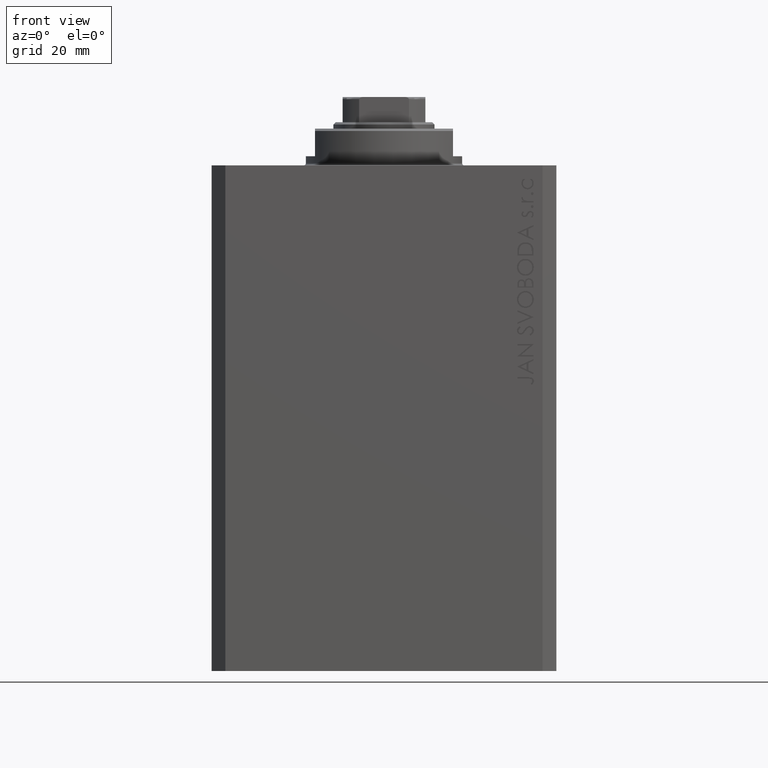
[diagram: clean part render]
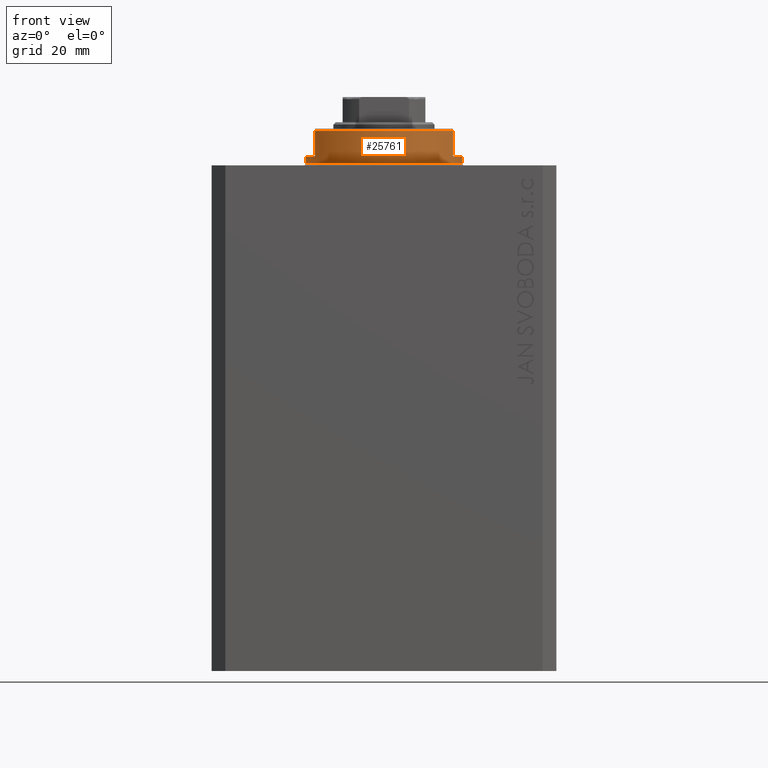
[diagram: same view with one face highlighted and labeled with its STEP entity id]
A machine part, front view. The second image highlights one B-rep face of the part: STEP entity #25761.
In plain terms, the highlighted cylindrical surface (partial cylindrical patch) has radius 17 mm, axis along (0, 0, -1).
Its self-contained STEP definition (entity closure, byte-faithful):
#797 = CYLINDRICAL_SURFACE ( 'NONE', #13704, 17.00000000000000000 ) ;
#1507 = DIRECTION ( 'NONE',  ( 1.000000000000000000, 0.000000000000000000, 0.000000000000000000 ) ) ;
#2162 = EDGE_CURVE ( 'NONE', #37372, #39652, #28585, .T. ) ;
#2588 = CARTESIAN_POINT ( 'NONE',  ( 0.000000000000000000, 0.000000000000000000, -2.000000000000000000 ) ) ;
#3126 = AXIS2_PLACEMENT_3D ( 'NONE', #17331, #25211, #43343 ) ;
#3570 = VERTEX_POINT ( 'NONE', #37775 ) ;
#3732 = CARTESIAN_POINT ( 'NONE',  ( 15.00000000000000000, -8.000000000000001776, -8.000000000000000000 ) ) ;
#3822 = VERTEX_POINT ( 'NONE', #15038 ) ;
#4137 = DIRECTION ( 'NONE',  ( -1.000000000000000000, 0.000000000000000000, 0.000000000000000000 ) ) ;
#4167 = CARTESIAN_POINT ( 'NONE',  ( 0.000000000000000000, 0.000000000000000000, -8.000000000000000000 ) ) ;
#4399 = DIRECTION ( 'NONE',  ( -0.000000000000000000, -0.000000000000000000, 1.000000000000000000 ) ) ;
#5289 = EDGE_CURVE ( 'NONE', #20636, #40796, #35929, .T. ) ;
#6067 = CIRCLE ( 'NONE', #17529, 17.00000000000000000 ) ;
#6749 = ORIENTED_EDGE ( 'NONE', *, *, #29664, .T. ) ;
#8171 = LINE ( 'NONE', #26343, #35834 ) ;
#8503 = LINE ( 'NONE', #41234, #25175 ) ;
#8727 = EDGE_CURVE ( 'NONE', #36135, #3822, #21647, .T. ) ;
#9219 = EDGE_CURVE ( 'NONE', #3570, #20636, #8171, .T. ) ;
#10811 = DIRECTION ( 'NONE',  ( 0.000000000000000000, 0.000000000000000000, -1.000000000000000000 ) ) ;
#12886 = ORIENTED_EDGE ( 'NONE', *, *, #30326, .T. ) ;
#12938 = EDGE_CURVE ( 'NONE', #3570, #36135, #19900, .T. ) ;
#13560 = DIRECTION ( 'NONE',  ( 0.000000000000000000, 0.000000000000000000, -1.000000000000000000 ) ) ;
#13704 = AXIS2_PLACEMENT_3D ( 'NONE', #4167, #4399, #1507 ) ;
#13886 = VECTOR ( 'NONE', #18294, 1000.000000000000000 ) ;
#15038 = CARTESIAN_POINT ( 'NONE',  ( 15.00000000000000000, -8.000000000000001776, -7.500000000000013323 ) ) ;
#15604 = AXIS2_PLACEMENT_3D ( 'NONE', #2588, #13560, #24809 ) ;
#17331 = CARTESIAN_POINT ( 'NONE',  ( 0.000000000000000000, 0.000000000000000000, -0.5000000000000004441 ) ) ;
#17529 = AXIS2_PLACEMENT_3D ( 'NONE', #31193, #19497, #19965 ) ;
#18147 = ORIENTED_EDGE ( 'NONE', *, *, #24779, .F. ) ;
#18243 = LINE ( 'NONE', #22056, #29700 ) ;
#18294 = DIRECTION ( 'NONE',  ( 0.000000000000000000, 0.000000000000000000, -1.000000000000000000 ) ) ;
#19497 = DIRECTION ( 'NONE',  ( 0.000000000000000000, 0.000000000000000000, 1.000000000000000000 ) ) ;
#19900 = CIRCLE ( 'NONE', #34386, 17.00000000000000000 ) ;
#19965 = DIRECTION ( 'NONE',  ( -1.000000000000000000, 0.000000000000000000, 0.000000000000000000 ) ) ;
#20636 = VERTEX_POINT ( 'NONE', #31486 ) ;
#21647 = LINE ( 'NONE', #3732, #13886 ) ;
#21771 = CARTESIAN_POINT ( 'NONE',  ( -17.00000000000000000, 2.081899558550500280E-15, -2.000000000000000000 ) ) ;
#22056 = CARTESIAN_POINT ( 'NONE',  ( -17.00000000000000000, 2.081899558550500280E-15, -8.000000000000000000 ) ) ;
#22512 = CARTESIAN_POINT ( 'NONE',  ( 0.000000000000000000, 0.000000000000000000, -2.000000000000000000 ) ) ;
#22961 = ORIENTED_EDGE ( 'NONE', *, *, #8727, .F. ) ;
#23881 = CARTESIAN_POINT ( 'NONE',  ( 14.99999999999999645, -8.000000000000003553, -2.000000000000000000 ) ) ;
#24779 = EDGE_CURVE ( 'NONE', #39652, #40796, #18243, .T. ) ;
#24809 = DIRECTION ( 'NONE',  ( -1.000000000000000000, 0.000000000000000000, 0.000000000000000000 ) ) ;
#25175 = VECTOR ( 'NONE', #45047, 1000.000000000000000 ) ;
#25211 = DIRECTION ( 'NONE',  ( -0.000000000000000000, -0.000000000000000000, -1.000000000000000000 ) ) ;
#25761 = ADVANCED_FACE ( 'NONE', ( #37110 ), #797, .T. ) ;
#26343 = CARTESIAN_POINT ( 'NONE',  ( 17.00000000000000000, 0.000000000000000000, -8.000000000000000000 ) ) ;
#27058 = DIRECTION ( 'NONE',  ( -0.000000000000000000, -0.000000000000000000, 1.000000000000000000 ) ) ;
#27305 = VERTEX_POINT ( 'NONE', #47097 ) ;
#28585 = CIRCLE ( 'NONE', #15604, 17.00000000000000000 ) ;
#28675 = CARTESIAN_POINT ( 'NONE',  ( -17.00000000000000000, 2.081899558550500280E-15, -0.5000000000000004441 ) ) ;
#28953 = CARTESIAN_POINT ( 'NONE',  ( -14.99999999999999645, -8.000000000000003553, -2.000000000000000000 ) ) ;
#28999 = DIRECTION ( 'NONE',  ( -0.000000000000000000, -0.000000000000000000, 1.000000000000000000 ) ) ;
#29032 = ORIENTED_EDGE ( 'NONE', *, *, #5289, .T. ) ;
#29664 = EDGE_CURVE ( 'NONE', #27305, #3822, #6067, .T. ) ;
#29700 = VECTOR ( 'NONE', #28999, 1000.000000000000000 ) ;
#30326 = EDGE_CURVE ( 'NONE', #37372, #27305, #8503, .T. ) ;
#31193 = CARTESIAN_POINT ( 'NONE',  ( 0.000000000000000000, 0.000000000000000000, -7.500000000000013323 ) ) ;
#31486 = CARTESIAN_POINT ( 'NONE',  ( 17.00000000000000000, 0.000000000000000000, -0.5000000000000004441 ) ) ;
#32949 = ORIENTED_EDGE ( 'NONE', *, *, #2162, .F. ) ;
#34386 = AXIS2_PLACEMENT_3D ( 'NONE', #22512, #10811, #4137 ) ;
#34531 = ORIENTED_EDGE ( 'NONE', *, *, #9219, .T. ) ;
#35834 = VECTOR ( 'NONE', #27058, 1000.000000000000000 ) ;
#35929 = CIRCLE ( 'NONE', #3126, 17.00000000000000000 ) ;
#36135 = VERTEX_POINT ( 'NONE', #23881 ) ;
#37110 = FACE_OUTER_BOUND ( 'NONE', #39696, .T. ) ;
#37372 = VERTEX_POINT ( 'NONE', #28953 ) ;
#37775 = CARTESIAN_POINT ( 'NONE',  ( 17.00000000000000000, 0.000000000000000000, -2.000000000000000000 ) ) ;
#39652 = VERTEX_POINT ( 'NONE', #21771 ) ;
#39696 = EDGE_LOOP ( 'NONE', ( #18147, #32949, #12886, #6749, #22961, #44078, #34531, #29032 ) ) ;
#40796 = VERTEX_POINT ( 'NONE', #28675 ) ;
#41234 = CARTESIAN_POINT ( 'NONE',  ( -15.00000000000000000, -8.000000000000001776, -8.000000000000000000 ) ) ;
#43343 = DIRECTION ( 'NONE',  ( 1.000000000000000000, 0.000000000000000000, 0.000000000000000000 ) ) ;
#44078 = ORIENTED_EDGE ( 'NONE', *, *, #12938, .F. ) ;
#45047 = DIRECTION ( 'NONE',  ( 0.000000000000000000, 0.000000000000000000, -1.000000000000000000 ) ) ;
#47097 = CARTESIAN_POINT ( 'NONE',  ( -15.00000000000000000, -8.000000000000001776, -7.500000000000014211 ) ) ;